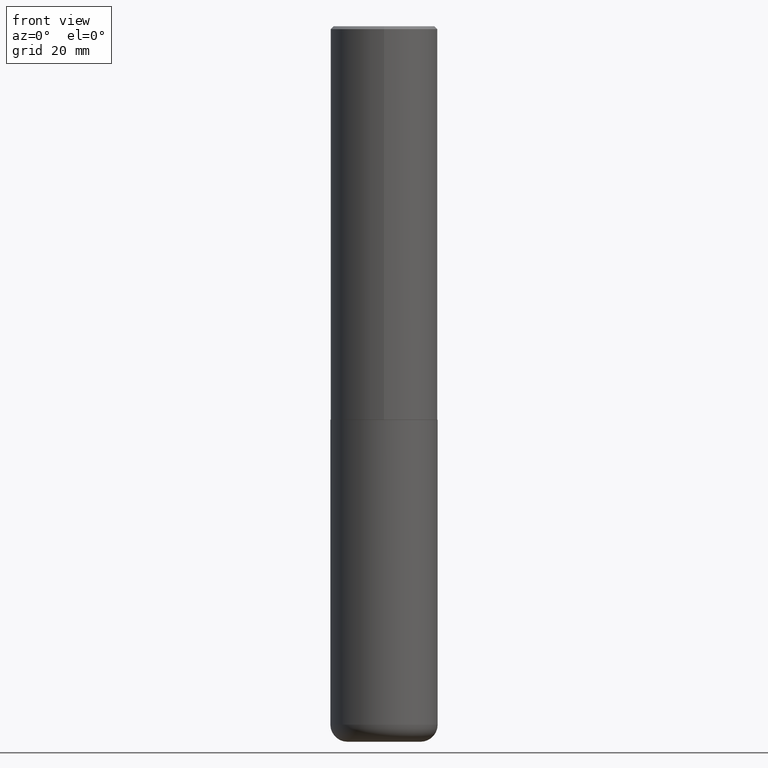
[diagram: clean part render]
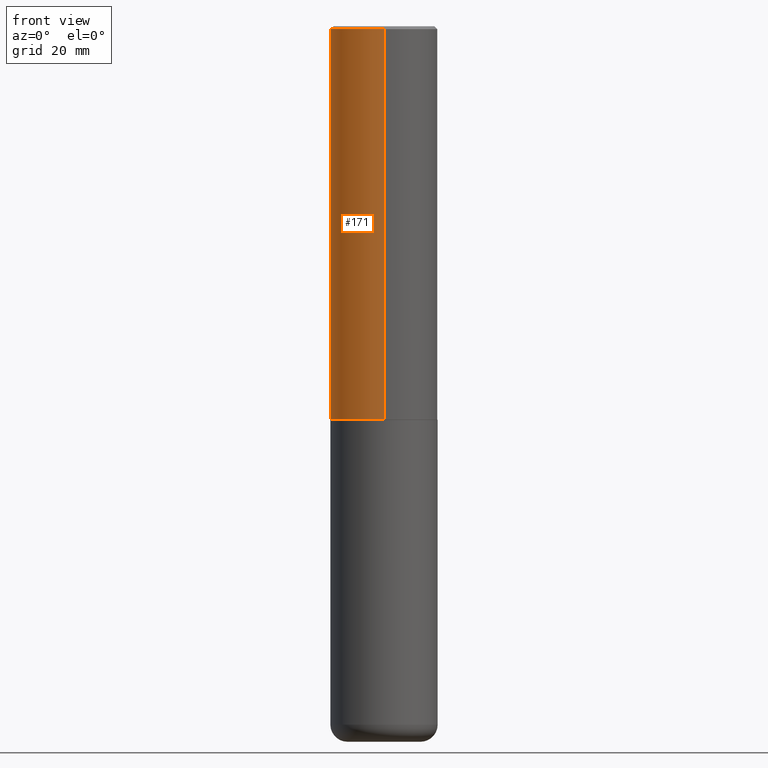
[diagram: same view with one face highlighted and labeled with its STEP entity id]
A machine part, front view. The second image highlights one B-rep face of the part: STEP entity #171.
In plain terms, the highlighted cylindrical surface (partial cylindrical patch) has radius 9.525 mm, axis along (-0, 0, 1).
Its self-contained STEP definition (entity closure, byte-faithful):
#6 = ORIENTED_EDGE ( 'NONE', *, *, #258, .F. ) ;
#11 = AXIS2_PLACEMENT_3D ( 'NONE', #134, #230, #30 ) ;
#30 = DIRECTION ( 'NONE',  ( -6.982962677686265922E-15, -1.000000000000000000, 2.913971193241877611E-15 ) ) ;
#37 = EDGE_LOOP ( 'NONE', ( #313, #39, #43, #6 ) ) ;
#39 = ORIENTED_EDGE ( 'NONE', *, *, #200, .T. ) ;
#43 = ORIENTED_EDGE ( 'NONE', *, *, #403, .T. ) ;
#48 = CIRCLE ( 'NONE', #159, 0.3750000000000000555 ) ;
#51 = CARTESIAN_POINT ( 'NONE',  ( 0.000000000000000000, 0.000000000000000000, 0.000000000000000000 ) ) ;
#64 = DIRECTION ( 'NONE',  ( -2.446040391741596606E-29, 3.490662795793665557E-15, 1.000000000000000000 ) ) ;
#65 = VECTOR ( 'NONE', #296, 39.37007874015748143 ) ;
#79 = LINE ( 'NONE', #241, #65 ) ;
#87 = AXIS2_PLACEMENT_3D ( 'NONE', #51, #294, #228 ) ;
#88 = FACE_OUTER_BOUND ( 'NONE', #37, .T. ) ;
#134 = CARTESIAN_POINT ( 'NONE',  ( 6.724165036897648492E-29, -9.595832025636787455E-15, -2.749000000000000110 ) ) ;
#159 = AXIS2_PLACEMENT_3D ( 'NONE', #193, #64, #194 ) ;
#165 = CARTESIAN_POINT ( 'NONE',  ( -2.618611004132284935E-15, -0.3750000000000099920, -2.748999999999999222 ) ) ;
#169 = CARTESIAN_POINT ( 'NONE',  ( 2.664535259100411196E-15, 0.3749999999999907296, -2.749000000000000998 ) ) ;
#171 = ADVANCED_FACE ( 'NONE', ( #88 ), #216, .T. ) ;
#178 = VECTOR ( 'NONE', #269, 39.37007874015748143 ) ;
#193 = CARTESIAN_POINT ( 'NONE',  ( 4.892080783483214581E-31, -6.981325591587361238E-17, -0.02000000000000008715 ) ) ;
#194 = DIRECTION ( 'NONE',  ( -6.982962677686265922E-15, -1.000000000000000000, 3.494488891895536035E-15 ) ) ;
#200 = EDGE_CURVE ( 'NONE', #392, #221, #219, .T. ) ;
#208 = CARTESIAN_POINT ( 'NONE',  ( -2.572686749164323547E-15, -0.3750000000000001110, -0.01999999999999877570 ) ) ;
#216 = CYLINDRICAL_SURFACE ( 'NONE', #87, 0.3750000000000002220 ) ;
#219 = CIRCLE ( 'NONE', #11, 0.3750000000000003886 ) ;
#221 = VERTEX_POINT ( 'NONE', #165 ) ;
#228 = DIRECTION ( 'NONE',  ( -6.982962677686266711E-15, -1.000000000000000000, 3.490662795793665951E-15 ) ) ;
#230 = DIRECTION ( 'NONE',  ( -2.446040391741596606E-29, 3.490662795793665557E-15, 1.000000000000000000 ) ) ;
#240 = VERTEX_POINT ( 'NONE', #356 ) ;
#241 = CARTESIAN_POINT ( 'NONE',  ( 2.664535259100376880E-15, 0.3750000000000002220, -1.308998548422625521E-15 ) ) ;
#258 = EDGE_CURVE ( 'NONE', #240, #418, #48, .T. ) ;
#269 = DIRECTION ( 'NONE',  ( -2.446040391741596606E-29, 3.490662795793665557E-15, 1.000000000000000000 ) ) ;
#294 = DIRECTION ( 'NONE',  ( -2.446040391741596606E-29, 3.490662795793665557E-15, 1.000000000000000000 ) ) ;
#296 = DIRECTION ( 'NONE',  ( -2.446040391741596606E-29, 3.490662795793665557E-15, 1.000000000000000000 ) ) ;
#303 = CARTESIAN_POINT ( 'NONE',  ( -2.618611004132351594E-15, -0.3750000000000002220, 1.308998548422625521E-15 ) ) ;
#313 = ORIENTED_EDGE ( 'NONE', *, *, #393, .F. ) ;
#356 = CARTESIAN_POINT ( 'NONE',  ( 2.618611004132350411E-15, 0.3749999999999999445, -0.02000000000000139513 ) ) ;
#360 = LINE ( 'NONE', #303, #178 ) ;
#392 = VERTEX_POINT ( 'NONE', #169 ) ;
#393 = EDGE_CURVE ( 'NONE', #392, #240, #79, .T. ) ;
#403 = EDGE_CURVE ( 'NONE', #221, #418, #360, .T. ) ;
#418 = VERTEX_POINT ( 'NONE', #208 ) ;